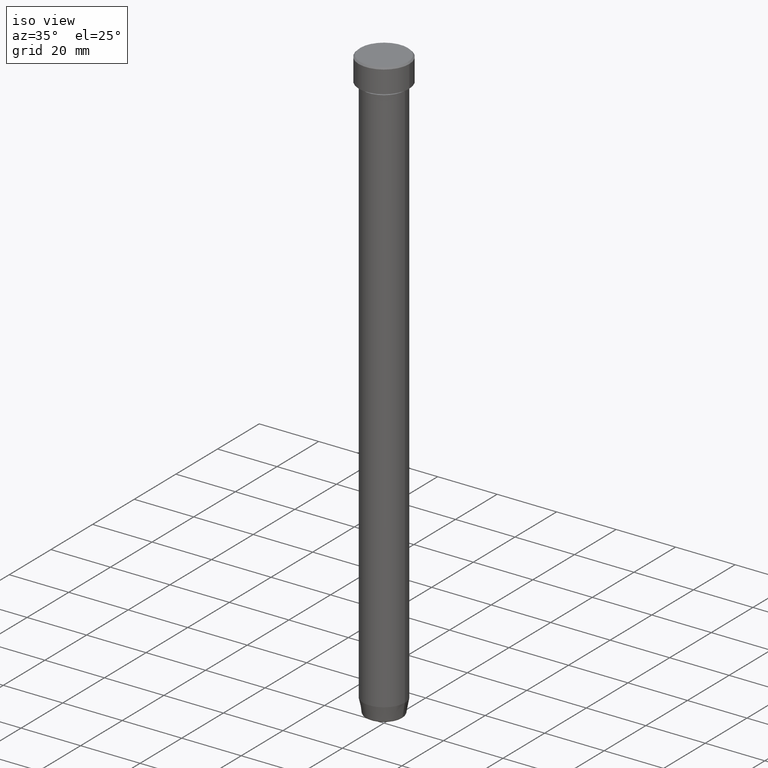
[diagram: clean part render]
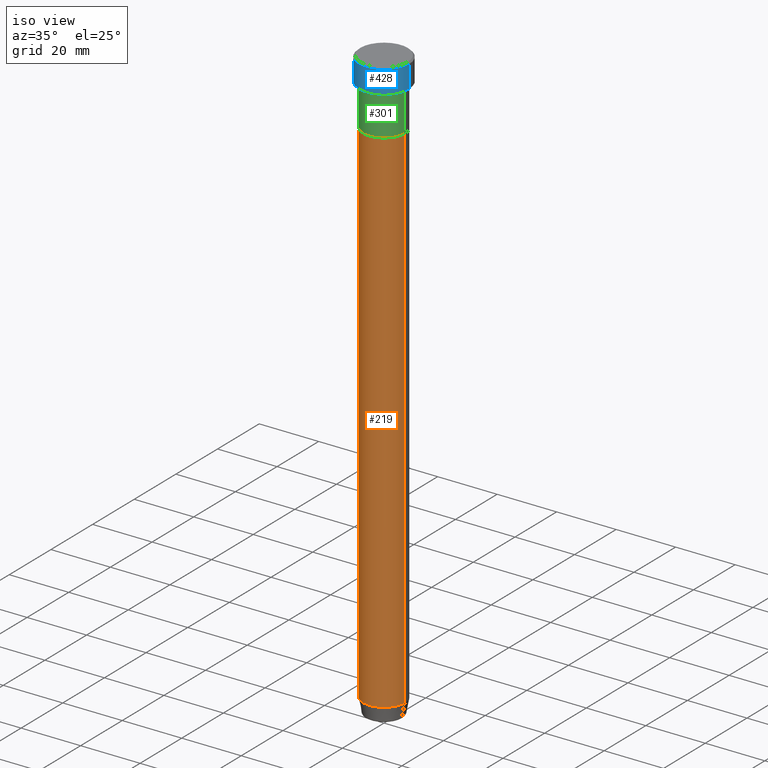
[diagram: same view with three faces highlighted in distinct colors, each labeled with its STEP entity id]
A machine part, iso view with three faces highlighted in distinct colors.
Their STEP definitions:

[orange] entity #219 — the highlighted cylindrical surface (edge-blend (fillet) strip) has radius 7 mm, axis along (-0, -0, 1).
#18 = EDGE_LOOP ( 'NONE', ( #365, #121, #451, #296 ) ) ;
#20 = LINE ( 'NONE', #247, #319 ) ;
#40 = VERTEX_POINT ( 'NONE', #541 ) ;
#103 = DIRECTION ( 'NONE',  ( -0.000000000000000000, -0.000000000000000000, 1.000000000000000000 ) ) ;
#108 = CIRCLE ( 'NONE', #362, 6.999999999999999112 ) ;
#121 = ORIENTED_EDGE ( 'NONE', *, *, #132, .T. ) ;
#124 = CARTESIAN_POINT ( 'NONE',  ( -6.999999999999999112, 8.572527594031472204E-16, 0.000000000000000000 ) ) ;
#132 = EDGE_CURVE ( 'NONE', #581, #165, #108, .T. ) ;
#165 = VERTEX_POINT ( 'NONE', #425 ) ;
#184 = DIRECTION ( 'NONE',  ( 1.000000000000000000, 0.000000000000000000, 0.000000000000000000 ) ) ;
#219 = ADVANCED_FACE ( 'NONE', ( #416 ), #596, .T. ) ;
#233 = AXIS2_PLACEMENT_3D ( 'NONE', #561, #467, #184 ) ;
#235 = VECTOR ( 'NONE', #316, 1000.000000000000000 ) ;
#243 = DIRECTION ( 'NONE',  ( 1.000000000000000000, 0.000000000000000000, 0.000000000000000000 ) ) ;
#247 = CARTESIAN_POINT ( 'NONE',  ( 6.999999999999999112, 0.000000000000000000, 0.000000000000000000 ) ) ;
#260 = DIRECTION ( 'NONE',  ( -0.000000000000000000, -0.000000000000000000, 1.000000000000000000 ) ) ;
#268 = DIRECTION ( 'NONE',  ( -0.000000000000000000, -0.000000000000000000, 1.000000000000000000 ) ) ;
#270 = CARTESIAN_POINT ( 'NONE',  ( 0.000000000000000000, 0.000000000000000000, -22.00000000000000000 ) ) ;
#283 = CARTESIAN_POINT ( 'NONE',  ( 0.000000000000000000, 0.000000000000000000, -195.0000000000000000 ) ) ;
#284 = EDGE_CURVE ( 'NONE', #165, #527, #20, .T. ) ;
#296 = ORIENTED_EDGE ( 'NONE', *, *, #410, .F. ) ;
#311 = AXIS2_PLACEMENT_3D ( 'NONE', #270, #268, #411 ) ;
#316 = DIRECTION ( 'NONE',  ( -0.000000000000000000, -0.000000000000000000, 1.000000000000000000 ) ) ;
#319 = VECTOR ( 'NONE', #260, 1000.000000000000000 ) ;
#362 = AXIS2_PLACEMENT_3D ( 'NONE', #283, #103, #243 ) ;
#364 = CARTESIAN_POINT ( 'NONE',  ( 6.999999999999999112, 0.000000000000000000, -22.00000000000000000 ) ) ;
#365 = ORIENTED_EDGE ( 'NONE', *, *, #398, .F. ) ;
#398 = EDGE_CURVE ( 'NONE', #581, #40, #492, .T. ) ;
#410 = EDGE_CURVE ( 'NONE', #40, #527, #511, .T. ) ;
#411 = DIRECTION ( 'NONE',  ( 1.000000000000000000, 0.000000000000000000, 0.000000000000000000 ) ) ;
#416 = FACE_OUTER_BOUND ( 'NONE', #18, .T. ) ;
#424 = CARTESIAN_POINT ( 'NONE',  ( -6.999999999999999112, 8.572527594031472204E-16, -195.0000000000000000 ) ) ;
#425 = CARTESIAN_POINT ( 'NONE',  ( 6.999999999999999112, 0.000000000000000000, -195.0000000000000000 ) ) ;
#451 = ORIENTED_EDGE ( 'NONE', *, *, #284, .T. ) ;
#467 = DIRECTION ( 'NONE',  ( -0.000000000000000000, -0.000000000000000000, 1.000000000000000000 ) ) ;
#492 = LINE ( 'NONE', #124, #235 ) ;
#511 = CIRCLE ( 'NONE', #311, 6.999999999999999112 ) ;
#527 = VERTEX_POINT ( 'NONE', #364 ) ;
#541 = CARTESIAN_POINT ( 'NONE',  ( -6.999999999999999112, 8.572527594031472204E-16, -22.00000000000000000 ) ) ;
#561 = CARTESIAN_POINT ( 'NONE',  ( 0.000000000000000000, 0.000000000000000000, 0.000000000000000000 ) ) ;
#581 = VERTEX_POINT ( 'NONE', #424 ) ;
#596 = CYLINDRICAL_SURFACE ( 'NONE', #233, 6.999999999999999112 ) ;

[blue] entity #428 — the highlighted cylindrical surface (edge-blend (fillet) strip) has radius 8.5 mm, axis along (-0, -0, 1).
#24 = CYLINDRICAL_SURFACE ( 'NONE', #363, 8.500000000000000000 ) ;
#26 = EDGE_CURVE ( 'NONE', #63, #348, #77, .T. ) ;
#35 = EDGE_CURVE ( 'NONE', #245, #441, #456, .T. ) ;
#51 = CARTESIAN_POINT ( 'NONE',  ( -8.500000000000000000, 1.040949779275250140E-15, 0.000000000000000000 ) ) ;
#63 = VERTEX_POINT ( 'NONE', #586 ) ;
#68 = AXIS2_PLACEMENT_3D ( 'NONE', #218, #401, #583 ) ;
#74 = EDGE_CURVE ( 'NONE', #441, #63, #313, .T. ) ;
#77 = CIRCLE ( 'NONE', #68, 8.500000000000000000 ) ;
#96 = EDGE_LOOP ( 'NONE', ( #485, #285, #269, #199 ) ) ;
#125 = DIRECTION ( 'NONE',  ( -0.000000000000000000, -0.000000000000000000, 1.000000000000000000 ) ) ;
#128 = FACE_OUTER_BOUND ( 'NONE', #96, .T. ) ;
#178 = DIRECTION ( 'NONE',  ( -0.000000000000000000, -0.000000000000000000, 1.000000000000000000 ) ) ;
#199 = ORIENTED_EDGE ( 'NONE', *, *, #26, .T. ) ;
#218 = CARTESIAN_POINT ( 'NONE',  ( 0.000000000000000000, 0.000000000000000000, -0.4999999999999987232 ) ) ;
#245 = VERTEX_POINT ( 'NONE', #557 ) ;
#248 = EDGE_CURVE ( 'NONE', #245, #348, #470, .T. ) ;
#269 = ORIENTED_EDGE ( 'NONE', *, *, #74, .T. ) ;
#285 = ORIENTED_EDGE ( 'NONE', *, *, #35, .T. ) ;
#304 = CARTESIAN_POINT ( 'NONE',  ( 8.500000000000000000, 0.000000000000000000, -8.000000000000000000 ) ) ;
#313 = LINE ( 'NONE', #589, #597 ) ;
#348 = VERTEX_POINT ( 'NONE', #475 ) ;
#363 = AXIS2_PLACEMENT_3D ( 'NONE', #448, #585, #496 ) ;
#401 = DIRECTION ( 'NONE',  ( 0.000000000000000000, 0.000000000000000000, -1.000000000000000000 ) ) ;
#412 = DIRECTION ( 'NONE',  ( 1.000000000000000000, 0.000000000000000000, 0.000000000000000000 ) ) ;
#426 = VECTOR ( 'NONE', #521, 1000.000000000000000 ) ;
#428 = ADVANCED_FACE ( 'NONE', ( #128 ), #24, .T. ) ;
#441 = VERTEX_POINT ( 'NONE', #304 ) ;
#448 = CARTESIAN_POINT ( 'NONE',  ( 0.000000000000000000, 0.000000000000000000, 0.000000000000000000 ) ) ;
#456 = CIRCLE ( 'NONE', #482, 8.500000000000000000 ) ;
#470 = LINE ( 'NONE', #51, #426 ) ;
#475 = CARTESIAN_POINT ( 'NONE',  ( -8.500000000000000000, 1.040949779275250140E-15, -0.4999999999999987232 ) ) ;
#482 = AXIS2_PLACEMENT_3D ( 'NONE', #545, #125, #412 ) ;
#485 = ORIENTED_EDGE ( 'NONE', *, *, #248, .F. ) ;
#496 = DIRECTION ( 'NONE',  ( 1.000000000000000000, 0.000000000000000000, 0.000000000000000000 ) ) ;
#521 = DIRECTION ( 'NONE',  ( -0.000000000000000000, -0.000000000000000000, 1.000000000000000000 ) ) ;
#545 = CARTESIAN_POINT ( 'NONE',  ( 0.000000000000000000, 0.000000000000000000, -8.000000000000000000 ) ) ;
#557 = CARTESIAN_POINT ( 'NONE',  ( -8.500000000000000000, 1.040949779275250140E-15, -8.000000000000000000 ) ) ;
#583 = DIRECTION ( 'NONE',  ( 1.000000000000000000, 0.000000000000000000, 0.000000000000000000 ) ) ;
#585 = DIRECTION ( 'NONE',  ( -0.000000000000000000, -0.000000000000000000, 1.000000000000000000 ) ) ;
#586 = CARTESIAN_POINT ( 'NONE',  ( 8.500000000000000000, 0.000000000000000000, -0.4999999999999987232 ) ) ;
#589 = CARTESIAN_POINT ( 'NONE',  ( 8.500000000000000000, 0.000000000000000000, 0.000000000000000000 ) ) ;
#597 = VECTOR ( 'NONE', #178, 1000.000000000000000 ) ;

[green] entity #301 — the highlighted cylindrical surface (edge-blend (fillet) strip) has radius 7 mm, axis along (-0, -0, 1).
#9 = CARTESIAN_POINT ( 'NONE',  ( 0.000000000000000000, 0.000000000000000000, -9.000000000000001776 ) ) ;
#22 = CARTESIAN_POINT ( 'NONE',  ( 6.999999999999999112, 0.000000000000000000, -22.00000000000000000 ) ) ;
#32 = DIRECTION ( 'NONE',  ( -0.000000000000000000, -0.000000000000000000, 1.000000000000000000 ) ) ;
#34 = ORIENTED_EDGE ( 'NONE', *, *, #306, .T. ) ;
#47 = CARTESIAN_POINT ( 'NONE',  ( 7.000000000000000000, 0.000000000000000000, -9.000000000000001776 ) ) ;
#61 = CARTESIAN_POINT ( 'NONE',  ( 6.999999999999999112, 0.000000000000000000, 0.000000000000000000 ) ) ;
#66 = EDGE_LOOP ( 'NONE', ( #543, #299, #34, #123 ) ) ;
#86 = VECTOR ( 'NONE', #163, 1000.000000000000000 ) ;
#94 = EDGE_CURVE ( 'NONE', #334, #490, #340, .T. ) ;
#116 = AXIS2_PLACEMENT_3D ( 'NONE', #393, #388, #292 ) ;
#123 = ORIENTED_EDGE ( 'NONE', *, *, #149, .F. ) ;
#149 = EDGE_CURVE ( 'NONE', #342, #238, #446, .T. ) ;
#163 = DIRECTION ( 'NONE',  ( -0.000000000000000000, -0.000000000000000000, 1.000000000000000000 ) ) ;
#179 = LINE ( 'NONE', #405, #427 ) ;
#196 = CYLINDRICAL_SURFACE ( 'NONE', #116, 6.999999999999999112 ) ;
#203 = AXIS2_PLACEMENT_3D ( 'NONE', #9, #324, #513 ) ;
#238 = VERTEX_POINT ( 'NONE', #47 ) ;
#287 = DIRECTION ( 'NONE',  ( 1.000000000000000000, 0.000000000000000000, 0.000000000000000000 ) ) ;
#288 = DIRECTION ( 'NONE',  ( -0.000000000000000000, -0.000000000000000000, 1.000000000000000000 ) ) ;
#292 = DIRECTION ( 'NONE',  ( 1.000000000000000000, 0.000000000000000000, 0.000000000000000000 ) ) ;
#299 = ORIENTED_EDGE ( 'NONE', *, *, #94, .T. ) ;
#301 = ADVANCED_FACE ( 'NONE', ( #431 ), #196, .T. ) ;
#306 = EDGE_CURVE ( 'NONE', #490, #238, #478, .T. ) ;
#324 = DIRECTION ( 'NONE',  ( -0.000000000000000000, -0.000000000000000000, 1.000000000000000000 ) ) ;
#333 = CARTESIAN_POINT ( 'NONE',  ( 0.000000000000000000, 0.000000000000000000, -22.00000000000000000 ) ) ;
#334 = VERTEX_POINT ( 'NONE', #564 ) ;
#340 = CIRCLE ( 'NONE', #510, 6.999999999999999112 ) ;
#342 = VERTEX_POINT ( 'NONE', #575 ) ;
#388 = DIRECTION ( 'NONE',  ( -0.000000000000000000, -0.000000000000000000, 1.000000000000000000 ) ) ;
#393 = CARTESIAN_POINT ( 'NONE',  ( 0.000000000000000000, 0.000000000000000000, 0.000000000000000000 ) ) ;
#405 = CARTESIAN_POINT ( 'NONE',  ( -6.999999999999999112, 8.572527594031472204E-16, 0.000000000000000000 ) ) ;
#427 = VECTOR ( 'NONE', #32, 1000.000000000000000 ) ;
#431 = FACE_OUTER_BOUND ( 'NONE', #66, .T. ) ;
#446 = CIRCLE ( 'NONE', #203, 7.000000000000000000 ) ;
#478 = LINE ( 'NONE', #61, #86 ) ;
#490 = VERTEX_POINT ( 'NONE', #22 ) ;
#498 = EDGE_CURVE ( 'NONE', #334, #342, #179, .T. ) ;
#510 = AXIS2_PLACEMENT_3D ( 'NONE', #333, #288, #287 ) ;
#513 = DIRECTION ( 'NONE',  ( 1.000000000000000000, 0.000000000000000000, 0.000000000000000000 ) ) ;
#543 = ORIENTED_EDGE ( 'NONE', *, *, #498, .F. ) ;
#564 = CARTESIAN_POINT ( 'NONE',  ( -6.999999999999999112, 8.572527594031472204E-16, -22.00000000000000000 ) ) ;
#575 = CARTESIAN_POINT ( 'NONE',  ( -7.000000000000000888, 8.572527594031474176E-16, -9.000000000000001776 ) ) ;